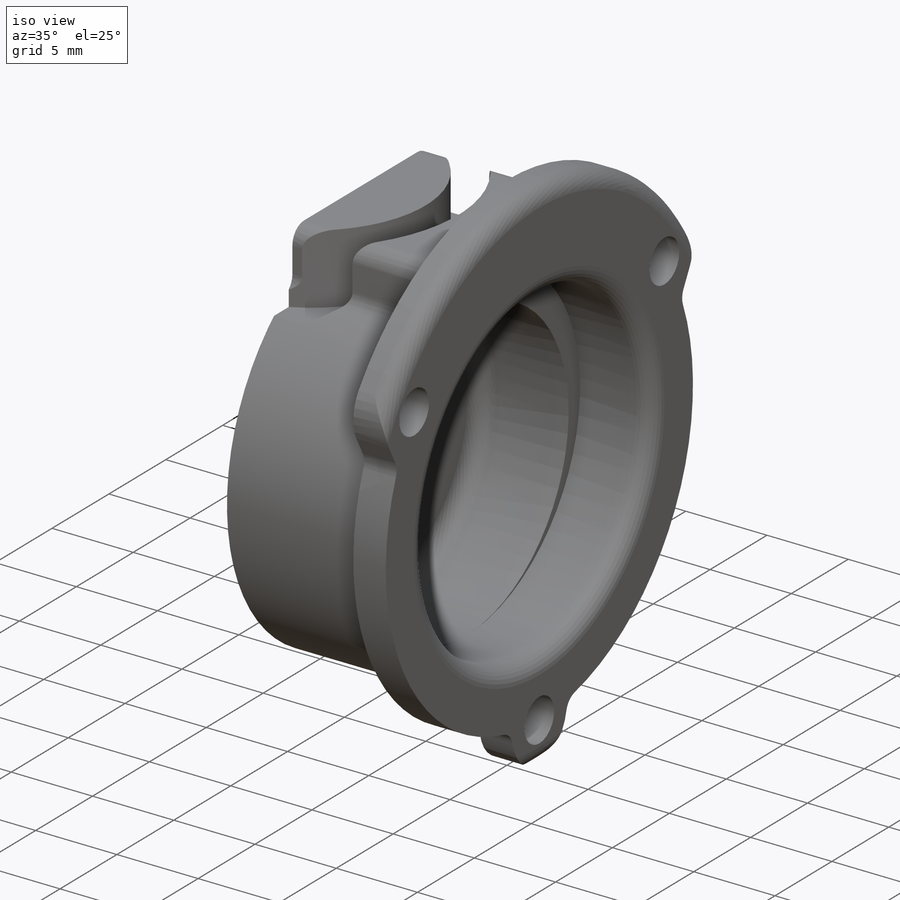
[diagram: iso view]
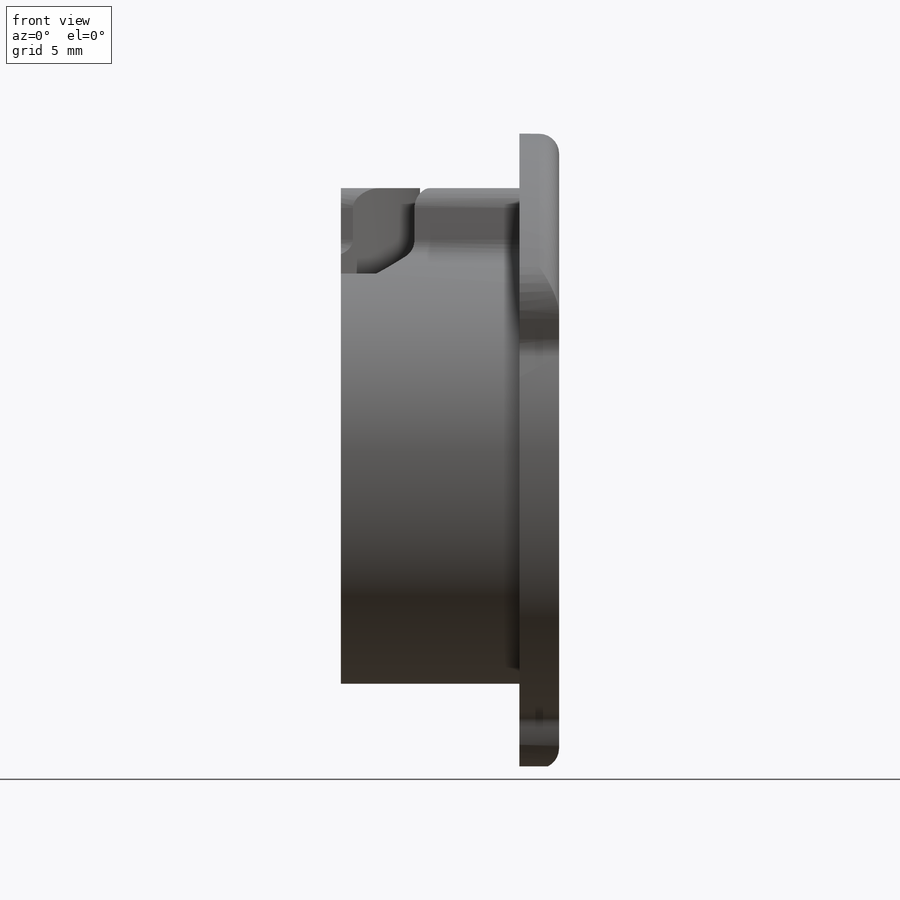
[diagram: front view]
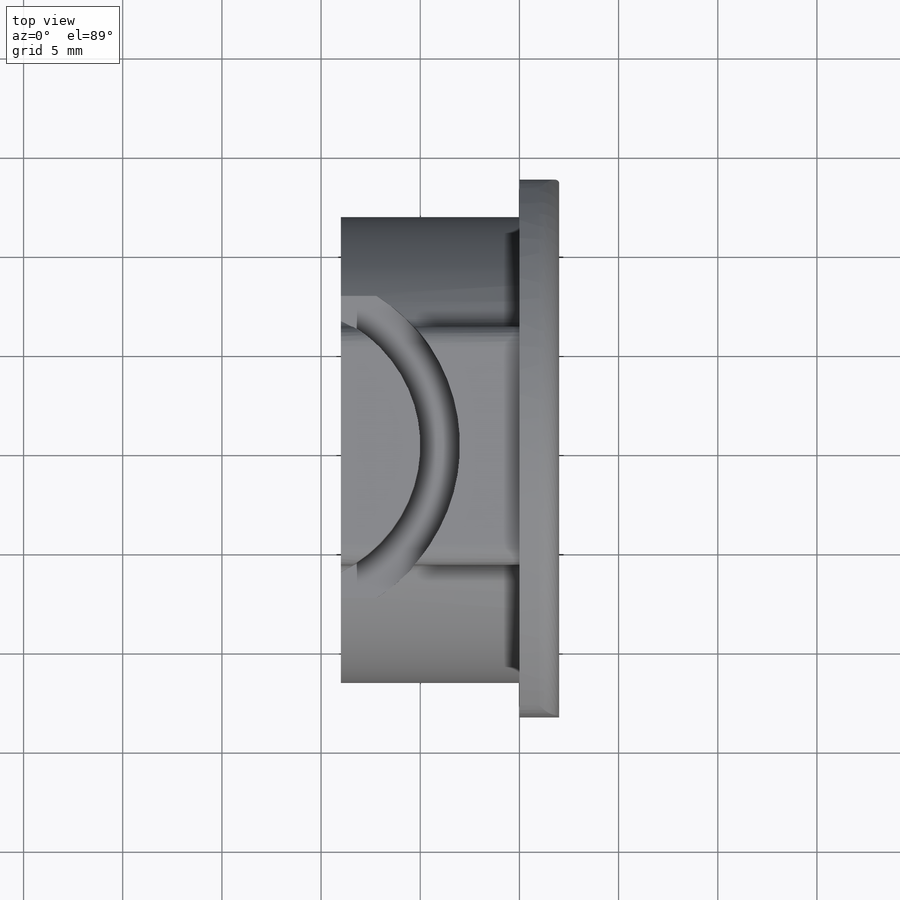
[diagram: top view]
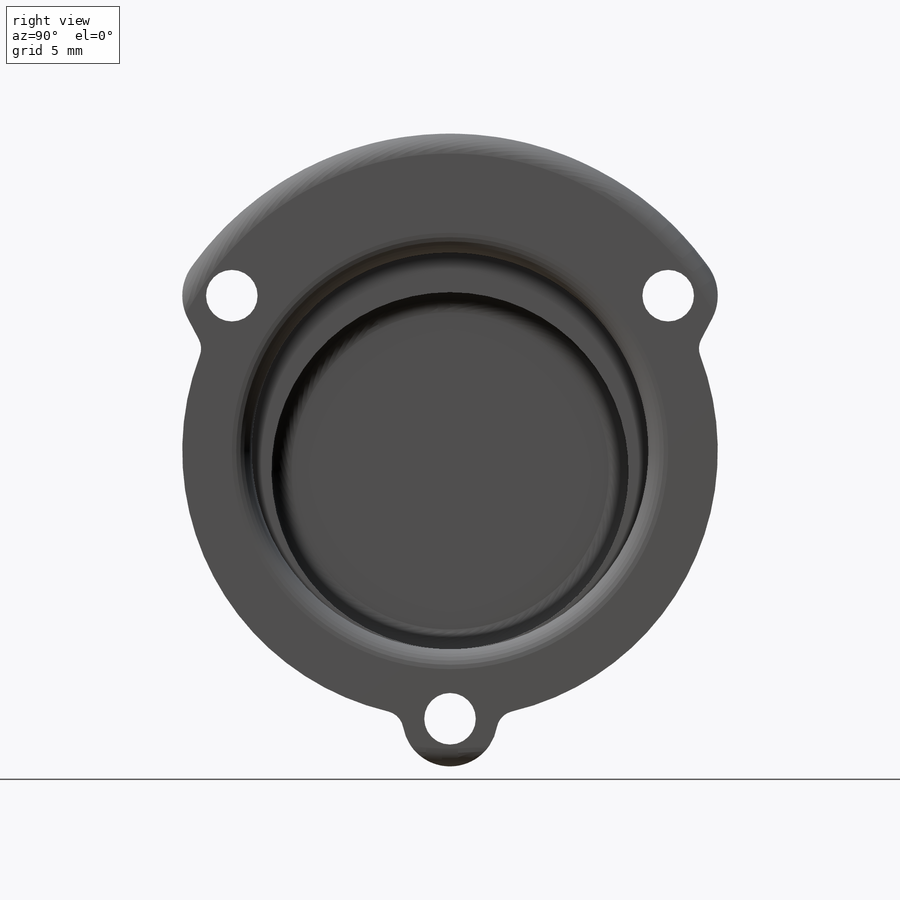
[diagram: right view]
SOLIDWORKS PART (.sldprt)
format: sldprt  version: not decoded by parser v0  size: 605,696 bytes
history: native  units: mm
features: sketch x6, cut_extrude x3, material x1, revolve x1, cut_revolve x1 (+13 scaffold rows collapsed)
feature tree (25):
  scaffold x13  (default folders/planes/origin — collapsed)
  material  "1060 Alloy"
  sketch  "Sketch1"  dims[c1.D1=1.0mm c1.D2=1.0mm c1.D3=20.0mm c1.D4=4.5mm c1.D5=2.0mm c2.D4=4.5mm c2.D6=32.0mm c2.D7=11.0mm]
  revolve  "Revolve1"  Angle=360deg
  sketch  "Sketch2"  dims[c1.D1=1.0mm c1.D2=1.0mm c1.D4=11.75mm c1.D3=12.0mm c2.D4=23.5mm c2.D5=25.0mm c2.D6=13.25mm]
  cut_extrude  "Cut-Extrude1"  [1 undecoded]
  sketch  "Sketch3"  dims[c1.D1=2.6mm c1.D2=27.0mm c1.D4=~27.003297mm c1.D5=1.0mm c1.D6=1.0mm c1.D8=2.4mm c1.D3=22.0mm c2.D2=24.0mm c2.D7=27.0mm]
  cut_extrude  "Cut-Extrude2"  [1 undecoded]
  sketch  "Sketch4"  dims[D1=1.0mm D2=10.0mm D3=1.0mm D4=18.0mm]
  cut_revolve  "Cut-Revolve1"  Angle=360deg
  sketch  "Sketch6"
  sketch  "Sketch5"  dims[D1=14.0mm D2=18.0mm D3=3.0mm]
  cut_extrude  "Cut-Extrude3"  Depth=4.3mm
decode coverage: 8 of 11 modeling features carry decoded parameters
note: ~ marks probable driven/reference dimensions
note: 2 parameter values undecoded
note: suppression state not decoded; provenance and decode notes live in map.json
